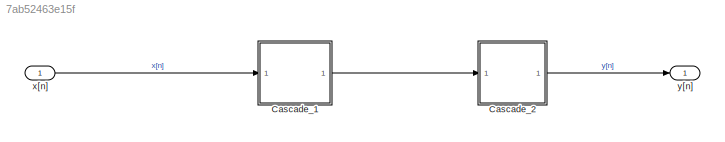
MODEL slx_7ab52463e15f
KIND model
CONFIG AbsTol = auto
CONFIG EnableMultiTasking = off
CONFIG FixedStep = 0.2
CONFIG MaxStep = auto
CONFIG MinStep = auto
CONFIG RelTol = 1e-3
CONFIG SampleTimeConstraint = Unconstrained
CONFIG SolverName = FixedStepDiscrete
CONFIG StartTime = 0.0
CONFIG StopTime = 10.0
BLOCK [ModelReference] Cascade_1
  ModelNameDialog = Cascade_1
  ModelReferenceVersion = 1.9
  Ports = [1, 1]
BLOCK [ModelReference] Cascade_2
  ModelNameDialog = Cascade_2
  ModelReferenceVersion = 1.10
  Ports = [1, 1]
BLOCK [Inport] x[n]
  OutDataTypeStr = double
  PortDimensions = 1
  SampleTime = [0.20000000000000001,0]
  SamplingMode = Sample based
  SignalType = real
BLOCK [Outport] y[n]
  OutDataTypeStr = double
  PortDimensions = 1
  SampleTime = [0.20000000000000001,0]
  SamplingMode = Sample based
  SignalType = real
LINE Cascade_1:1 -> Cascade_2:1
LINE Cascade_2:1 -> y[n]:1
LINE x[n]:1 -> Cascade_1:1
